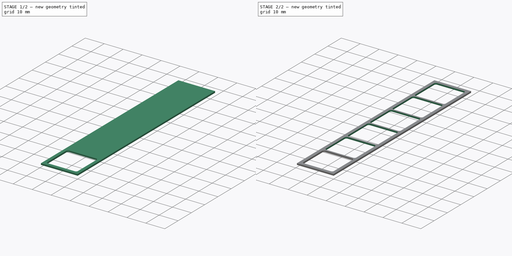
[diagram: build sequence overview — one tinted view per stage of 2, left to right]
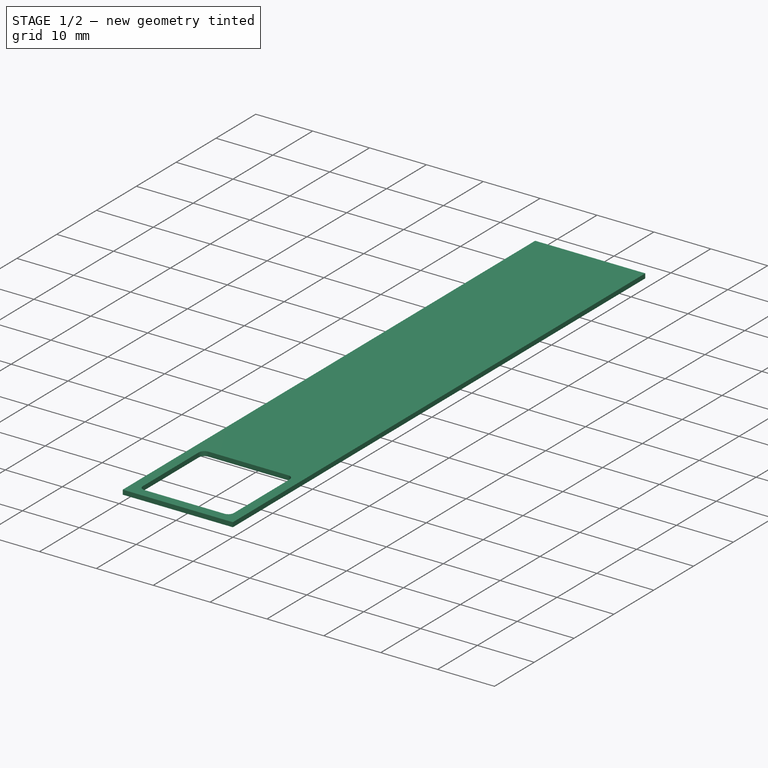
[diagram: stage 1 of 2 — iso view after this stage's code; geometry added in this stage tinted green]
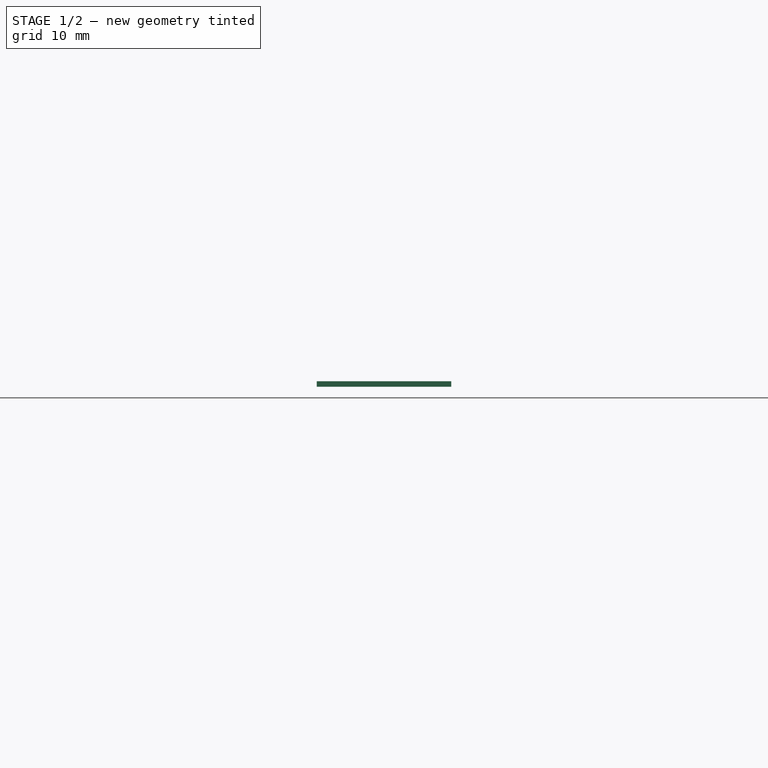
[diagram: stage 1 of 2 — front view after this stage's code; geometry added in this stage tinted green]
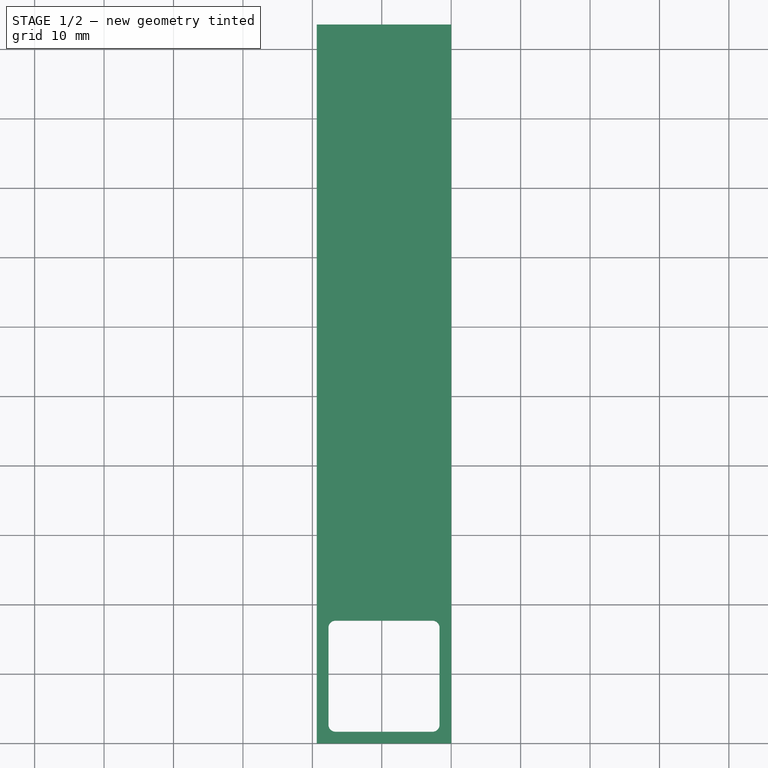
[diagram: stage 1 of 2 — top view after this stage's code; geometry added in this stage tinted green]
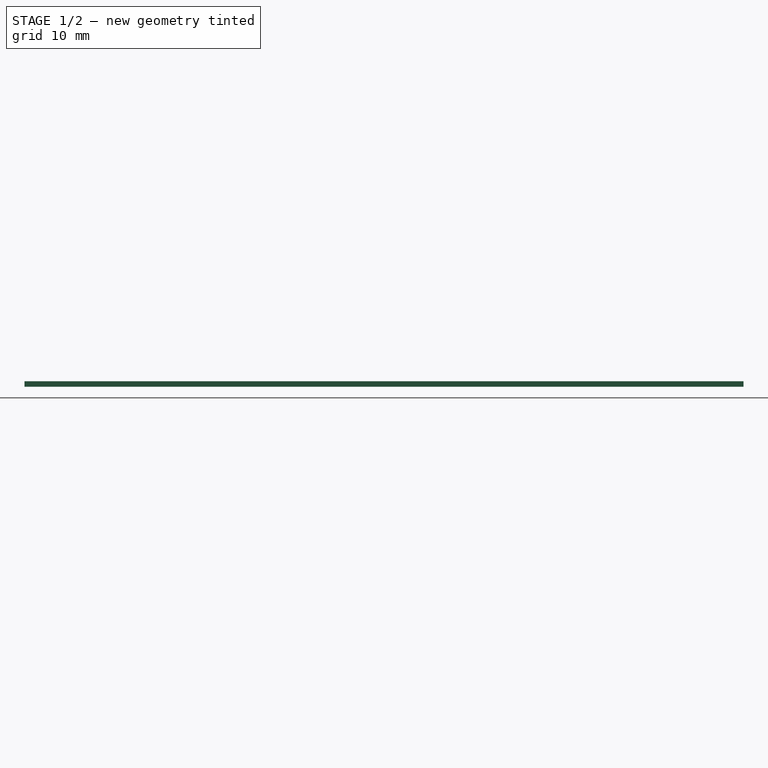
[diagram: stage 1 of 2 — right view after this stage's code; geometry added in this stage tinted green]
FCSTD DOCUMENT  (FreeCAD 1.0R39109 (Git))
Label: tiny-keyboard-experiment-stencil
License: All rights reserved
LicenseURL: https://en.wikipedia.org/wiki/All_rights_reserved
objects: Sketcher::SketchObject×2, App::VarSet×1, PartDesign::Pad×1, PartDesign::Pocket×1, PartDesign::LinearPattern×1, PartDesign::Body×1
note: 13 computed .brp shape members not serialized (recipe doc carries the construction recipe); baked Part::Feature solids carry a one-line shape summary decoded from their .brp

FEATURE [App::VarSet] VarSet
  Base_KeySide = 15
  Base_LayerWidth = 0.42
  Base_NumberOfKeys = 6
  Base_PencilOffset = 1
  Base_RealKeySide = 16
  Base_Spacing = 0.84
  expr: Base_RealKeySide = Base_KeySide + Base_PencilOffset
  expr: Base_Spacing = Base_LayerWidth * 2
FEATURE [Sketcher::SketchObject] Sketch
  ArcFitTolerance = 1e-06
  AttachmentSupport = -> [XY_Plane]
  FullyConstrained = true
  MakeInternals = false
  MapMode = 5
  expr: Constraints[10] = VarSet.Base_RealKeySide + VarSet.Base_Spacing * 4
  expr: Constraints[9] = VarSet.Base_NumberOfKeys * (VarSet.Base_Spacing + VarSet.Base_RealKeySide) + VarSet.Base_Spacing * 3
  sketch-geometry (4):
    g0: LineSegment StartX=0 StartY=0 StartZ=0 EndX=0 EndY=103.56 EndZ=0
    g1: LineSegment StartX=0 StartY=103.56 StartZ=0 EndX=-19.36 EndY=103.56 EndZ=0
    g2: LineSegment StartX=-19.36 StartY=103.56 StartZ=0 EndX=-19.36 EndY=0 EndZ=0
    g3: LineSegment StartX=-19.36 StartY=0 StartZ=0 EndX=0 EndY=0 EndZ=0
  constraints (11):
    c: Coincident(g0,g1)
    c: Coincident(g1,g2)
    c: Coincident(g2,g3)
    c: Coincident(g3,g0)
    c: Vertical(g0)
    c: Vertical(g2)
    c: Horizontal(g1)
    c: Horizontal(g3)
    c: Coincident(g0,g-1)
    c: DistanceY(g0,g0) = 103.56
    c: Distance(g3,g3) = 19.36
FEATURE [PartDesign::Pad] Pad
  Direction = (0,0,1)
  Length = 0.8
  Length2 = 10
  Profile = -> Sketch
  ReferenceAxis = -> Sketch [N_Axis]
  Refine = true
  Suppressed = false
  Type = 0
FEATURE [Sketcher::SketchObject] Sketch001
  ArcFitTolerance = 1e-06
  AttachmentSupport = -> [Pad]
  FullyConstrained = true
  MakeInternals = false
  MapMode = 5
  Placement = pos=(0,0,0.8) rot=(0,0,1;0rad)
  expr: Constraints[20] = VarSet.Base_RealKeySide
  expr: Constraints[21] = VarSet.Base_RealKeySide
  expr: Constraints[22] = VarSet.Base_Spacing * 2
  expr: Constraints[23] = VarSet.Base_Spacing * 2
  sketch-geometry (10):
    g0: LineSegment StartX=-17.68 StartY=16.68 StartZ=0 EndX=-17.68 EndY=2.68 EndZ=0
    g1: LineSegment StartX=-16.68 StartY=1.68 StartZ=0 EndX=-2.68 EndY=1.68 EndZ=0
    g2: LineSegment StartX=-1.68 StartY=2.68 StartZ=0 EndX=-1.68 EndY=16.68 EndZ=0
    g3: LineSegment StartX=-2.68 StartY=17.68 StartZ=0 EndX=-16.68 EndY=17.68 EndZ=0
    g4: ArcOfCircle CenterX=-16.68 CenterY=16.68 CenterZ=0 NormalX=0 NormalY=0 NormalZ=1 AngleXU=0 Radius=1 StartAngle=1.5708 EndAngle=3.14159
    g5: ArcOfCircle CenterX=-16.68 CenterY=2.68 CenterZ=0 NormalX=0 NormalY=0 NormalZ=1 AngleXU=0 Radius=1 StartAngle=3.14159 EndAngle=4.71239
    g6: ArcOfCircle CenterX=-2.68 CenterY=2.68 CenterZ=0 NormalX=0 NormalY=0 NormalZ=1 AngleXU=0 Radius=1 StartAngle=4.71239 EndAngle=6.28319
    g7: ArcOfCircle CenterX=-2.68 CenterY=16.68 CenterZ=0 NormalX=0 NormalY=0 NormalZ=1 AngleXU=0 Radius=1 StartAngle=-9e-16 EndAngle=1.5708
    g8: GeomPoint [constr] X=-17.68 Y=17.68 Z=0
    g9: GeomPoint [constr] X=-1.68 Y=1.68 Z=0
  constraints (24):
    c: Tangent(g0,g4) = -1.5708
    c: Tangent(g0,g5) = -1.5708
    c: Tangent(g1,g5) = -1.5708
    c: Tangent(g1,g6) = -1.5708
    c: Tangent(g2,g6) = -1.5708
    c: Tangent(g2,g7) = -1.5708
    c: Tangent(g3,g7) = -1.5708
    c: Tangent(g3,g4) = -1.5708
    c: Vertical(g0)
    c: Vertical(g2)
    c: Horizontal(g1)
    c: Horizontal(g3)
    c: Equal(g4,g5)
    c: Equal(g5,g6)
    c: Equal(g6,g7)
    c: PointOnObject(g8,g0)
    c: PointOnObject(g8,g3)
    c: PointOnObject(g9,g1)
    c: PointOnObject(g9,g2)
    c: Radius(g5) = 1
    c: Distance(g3,g1) = 16
    c: Distance(g0,g2) = 16
    c: Distance(g-2,g2) = 1.68
    c: Distance(g1,g-1) = 1.68
FEATURE [PartDesign::Pocket] Pocket
  BaseFeature = -> Pad
  Direction = (0,0,-1)
  Length = 5
  Length2 = 5
  Profile = -> Sketch001
  ReferenceAxis = -> Sketch001 [N_Axis]
  Refine = true
  Suppressed = false
  Type = 0
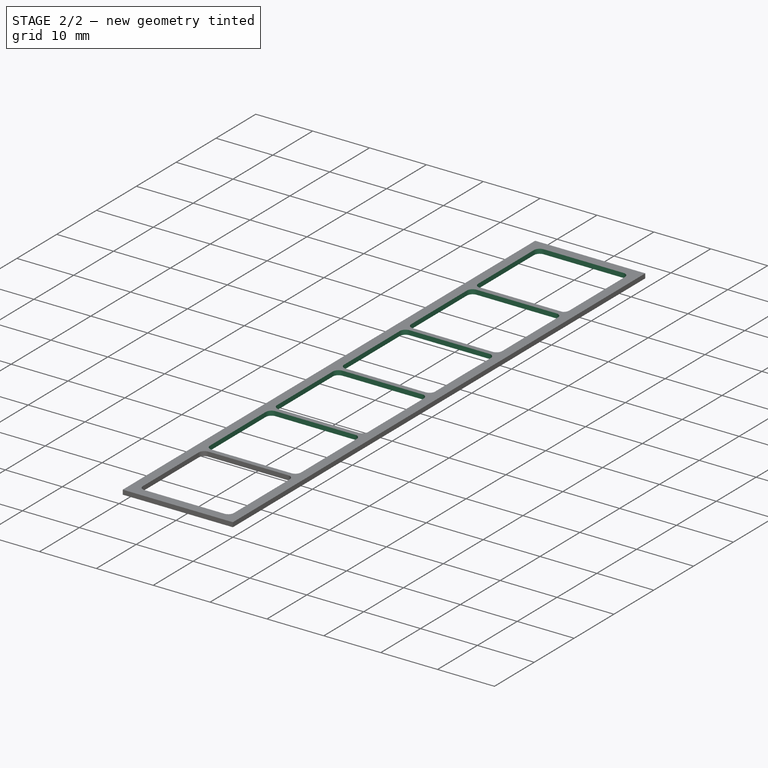
[diagram: stage 2 of 2 — iso view after this stage's code; geometry added in this stage tinted green]
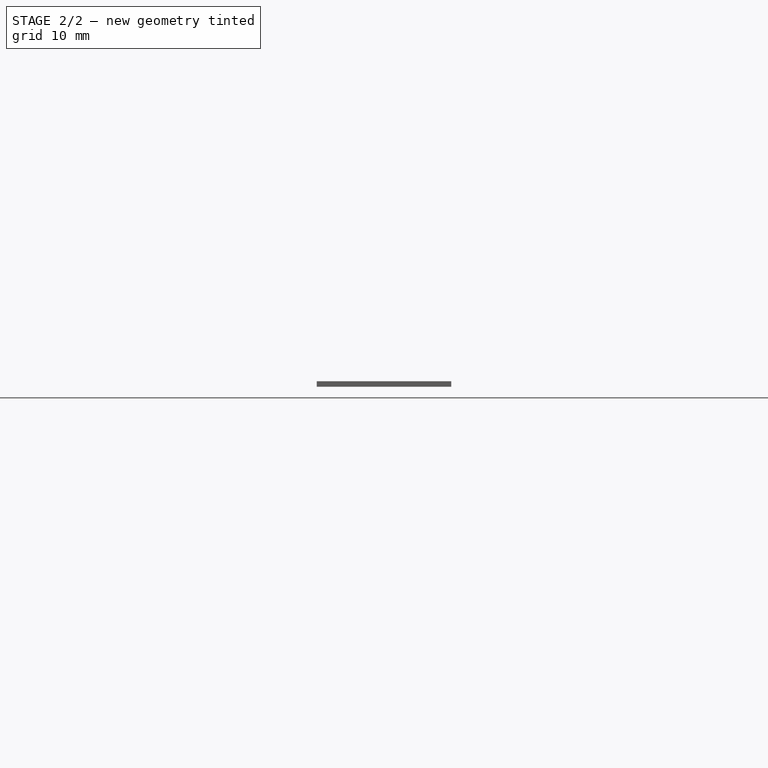
[diagram: stage 2 of 2 — front view after this stage's code; geometry added in this stage tinted green]
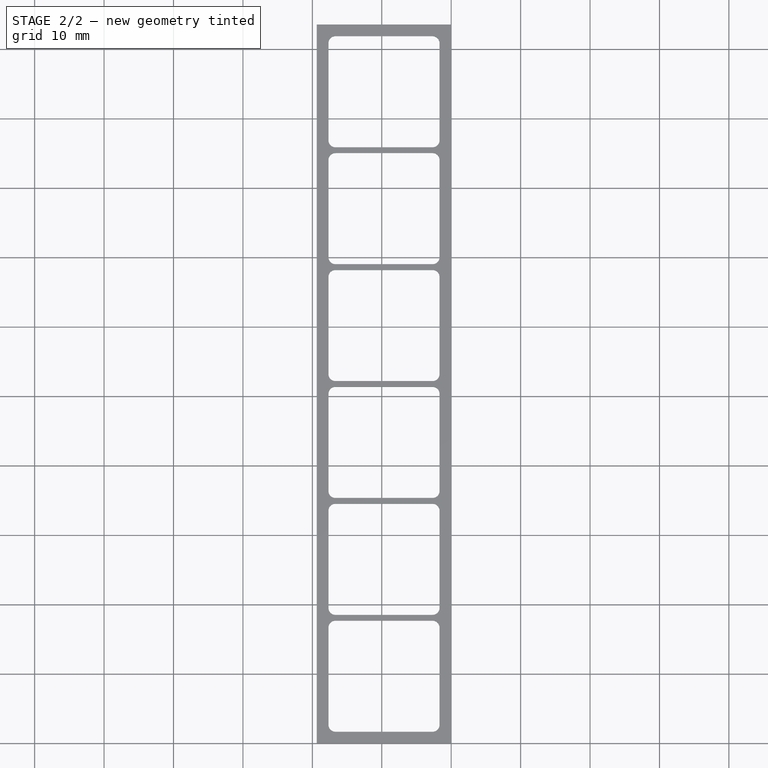
[diagram: stage 2 of 2 — top view after this stage's code; geometry added in this stage tinted green]
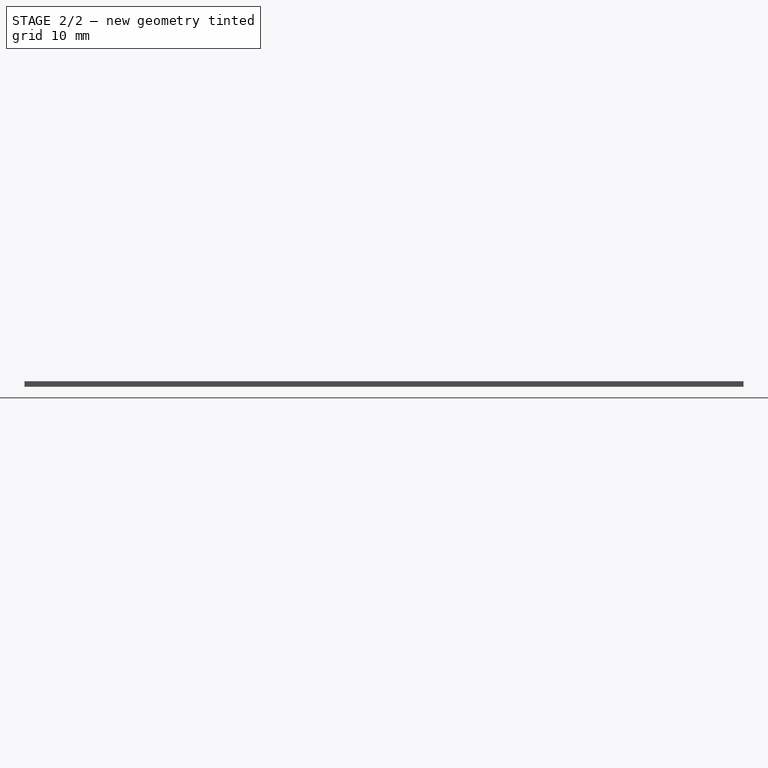
[diagram: stage 2 of 2 — right view after this stage's code; geometry added in this stage tinted green]
FEATURE [PartDesign::LinearPattern] LinearPattern
  BaseFeature = -> Pocket
  Direction = -> Y_Axis
  Length = 100
  Mode = 1
  Occurrences = 6
  Offset = 16.84
  Originals = -> [Pocket]
  Refine = true
  Suppressed = false
  TransformMode = 0
  expr: Length = 100 mm
  expr: Occurrences = VarSet.Base_NumberOfKeys
  expr: Offset = VarSet.Base_RealKeySide + VarSet.Base_Spacing
FEATURE [PartDesign::Body] Body
  AllowCompound = false
  Group = -> [Sketch,Pad,Sketch001,Pocket,LinearPattern]
  Origin = -> Origin
  Tip = -> LinearPattern
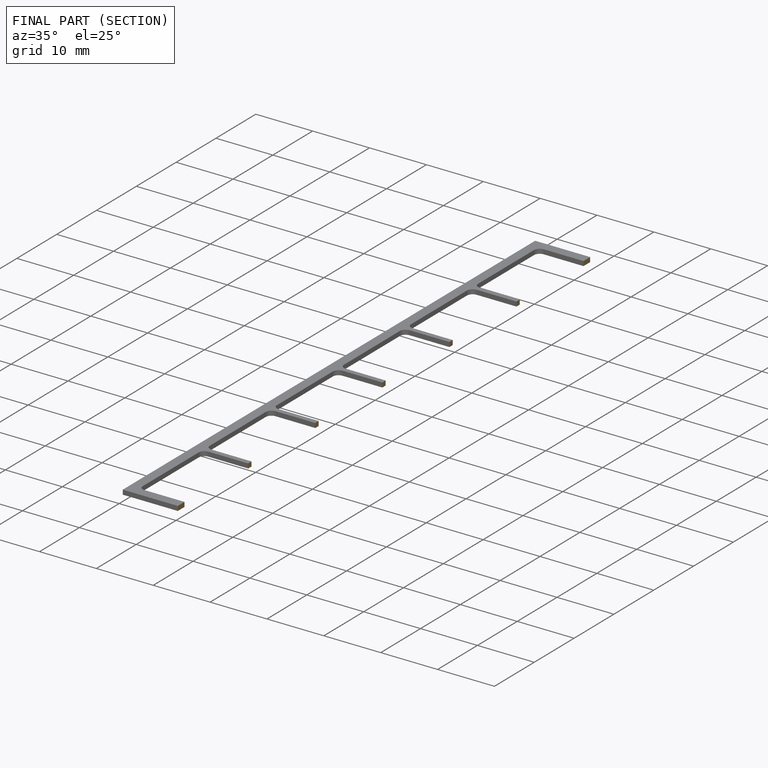
[diagram: finished part — half-section view (interior)]
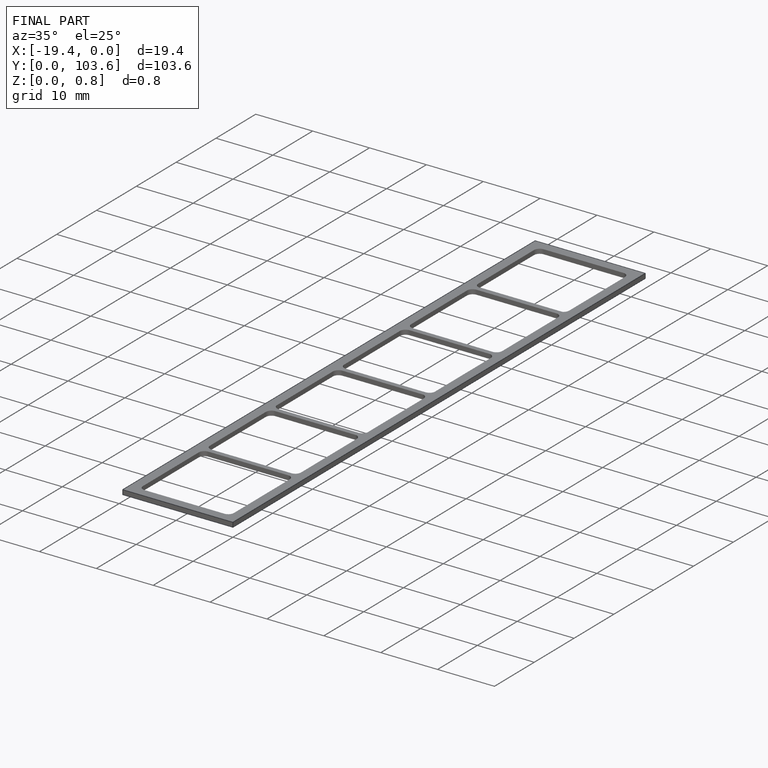
[diagram: finished part — iso view with bounding-box wireframe]
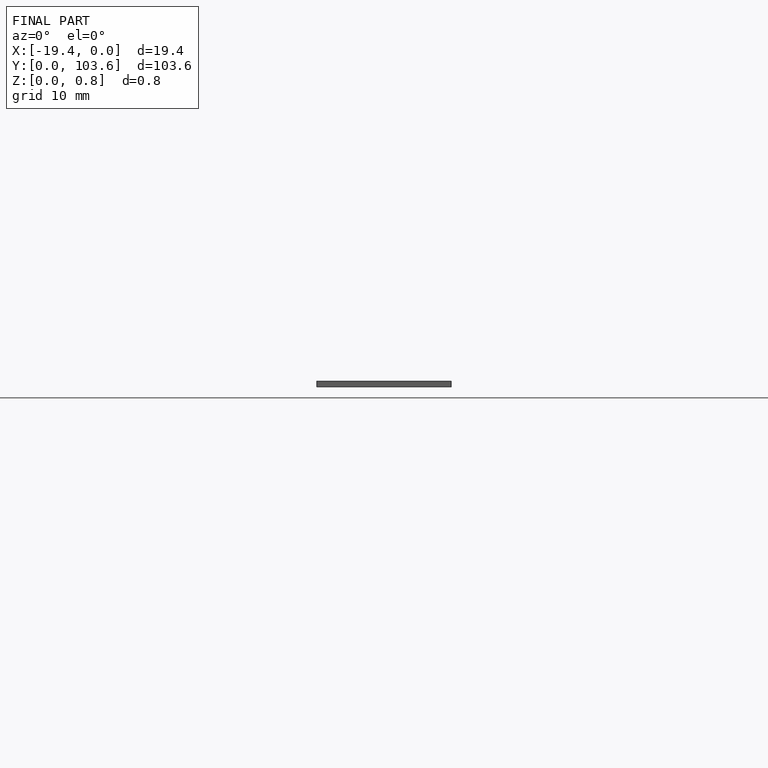
[diagram: finished part — front view with bounding-box wireframe]
